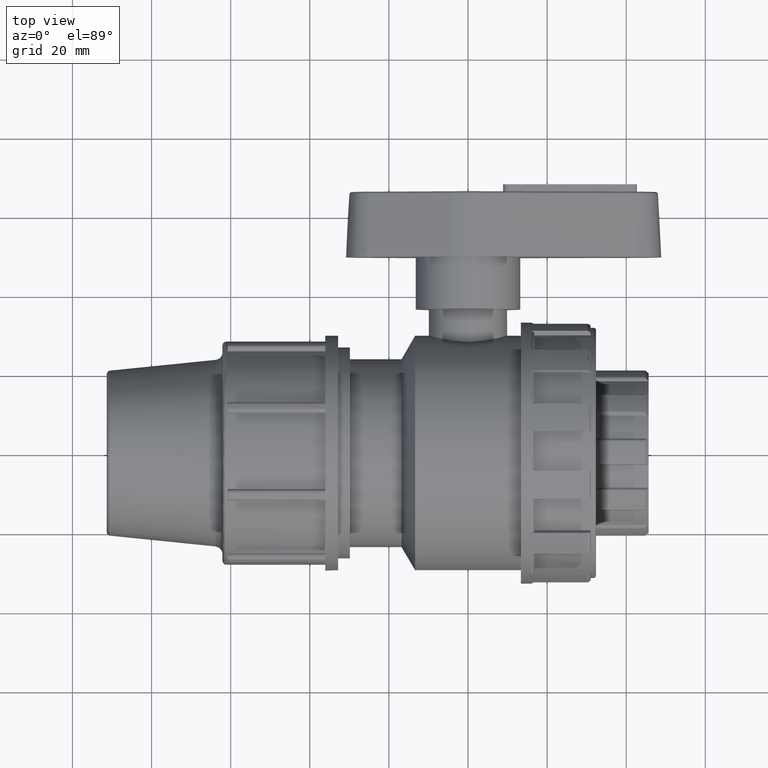
[diagram: clean part render]
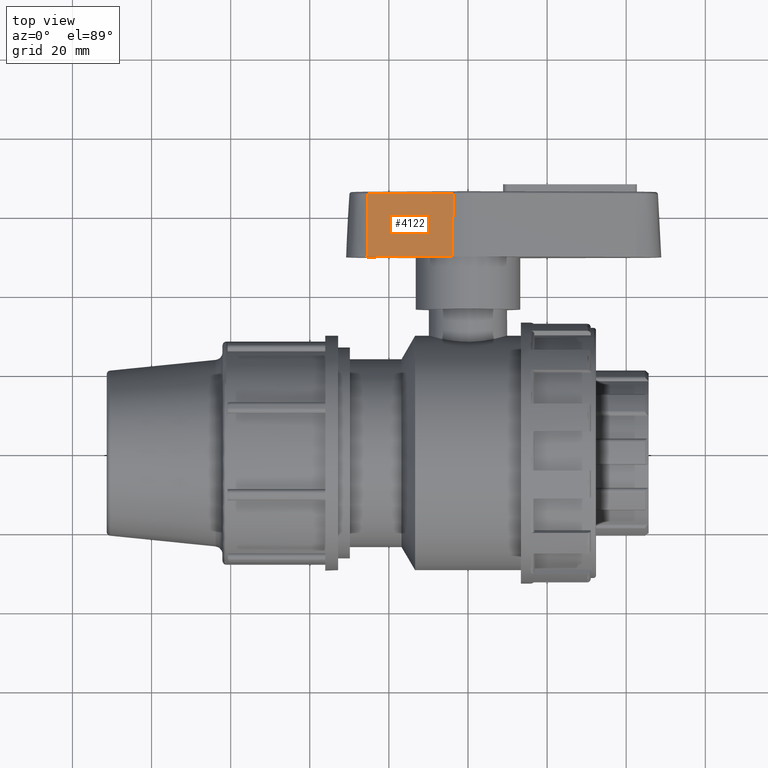
[diagram: same view with one face highlighted and labeled with its STEP entity id]
A machine part, top view. The second image highlights one B-rep face of the part: STEP entity #4122.
In plain terms, the highlighted planar face has unit normal (-0.2817, 0.0523, 0.9581).
Its self-contained STEP definition (entity closure, byte-faithful):
#149=PLANE('',#4527);
#502=FACE_OUTER_BOUND('',#760,.T.);
#760=EDGE_LOOP('',(#3339,#3340,#3341,#3342));
#995=LINE('',#7590,#1223);
#1011=LINE('',#7642,#1239);
#1013=LINE('',#7649,#1241);
#1014=LINE('',#7650,#1242);
#1223=VECTOR('',#5391,22.4499443206437);
#1239=VECTOR('',#5449,22.4499443206437);
#1241=VECTOR('',#5457,15.9477419951585);
#1242=VECTOR('',#5458,15.9477419951585);
#1834=VERTEX_POINT('',#7580);
#1836=VERTEX_POINT('',#7586);
#1851=VERTEX_POINT('',#7639);
#1852=VERTEX_POINT('',#7641);
#2374=EDGE_CURVE('',#1834,#1836,#995,.T.);
#2399=EDGE_CURVE('',#1852,#1851,#1011,.T.);
#2403=EDGE_CURVE('',#1834,#1852,#1013,.T.);
#2404=EDGE_CURVE('',#1836,#1851,#1014,.T.);
#3339=ORIENTED_EDGE('',*,*,#2374,.F.);
#3340=ORIENTED_EDGE('',*,*,#2403,.T.);
#3341=ORIENTED_EDGE('',*,*,#2399,.T.);
#3342=ORIENTED_EDGE('',*,*,#2404,.F.);
#4122=ADVANCED_FACE('',(#502),#149,.T.);
#4527=AXIS2_PLACEMENT_3D('',#7648,#5455,#5456);
#5391=DIRECTION('',(0.959399329942036,2.86908343679891E-16,0.282051282051282));
#5449=DIRECTION('',(0.959399329942036,2.86908343679891E-16,0.282051282051282));
#5455=DIRECTION('center_axis',(-0.281664740571803,0.0523359562429438,0.958084506503865));
#5456=DIRECTION('ref_axis',(-0.959399329942036,0.,-0.282051282051282));
#5457=DIRECTION('',(-0.0147614235557019,-0.998629534754574,0.050211081351356));
#5458=DIRECTION('',(-0.0147614235557018,-0.998629534754574,0.0502110813513561));
#7580=CARTESIAN_POINT('',(-25.2700248292389,65.4258861690111,6.36090201433845));
#7586=CARTESIAN_POINT('',(-3.73156329077735,65.4258861690111,12.6929375919559));
#7590=CARTESIAN_POINT('',(-14.5007940600081,65.4258861690111,9.52691980314718));
#7639=CARTESIAN_POINT('',(-3.96697466512493,49.5,13.4936909626452));
#7641=CARTESIAN_POINT('',(-25.5054362035865,49.5,7.16165538502779));
#7642=CARTESIAN_POINT('',(-25.5054362035865,49.5,7.16165538502779));
#7648=CARTESIAN_POINT('Origin',(-25.2615384615385,66.,6.33203557761744));
#7649=CARTESIAN_POINT('',(-25.2615384615385,66.,6.33203557761744));
#7650=CARTESIAN_POINT('',(-3.72307692307694,66.,12.6640711552349));